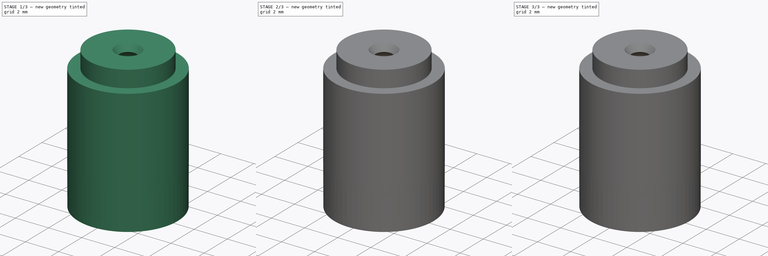
[diagram: build sequence overview — one tinted view per stage of 3, left to right]
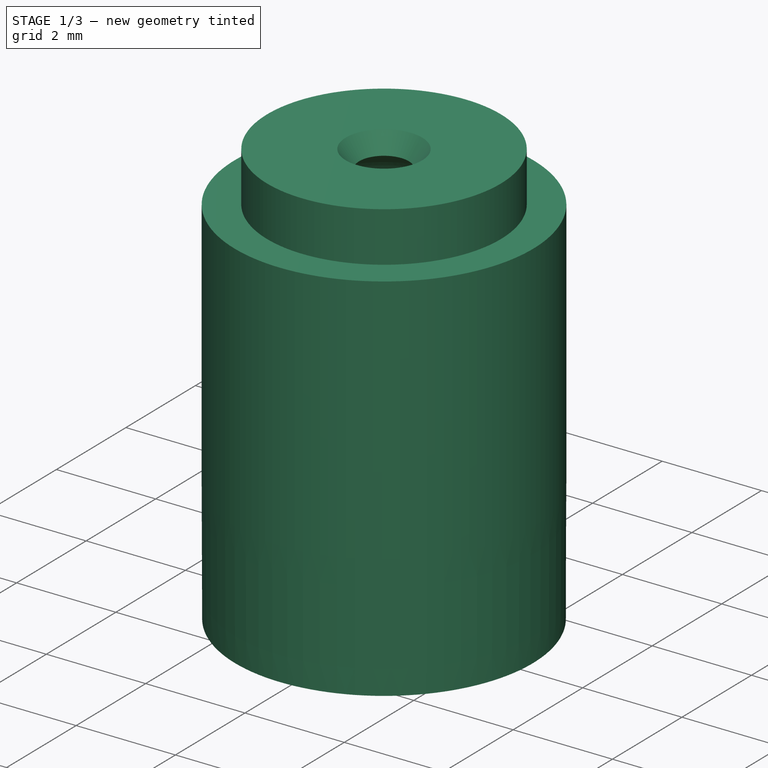
[diagram: stage 1 of 3 — iso view after this stage's code; geometry added in this stage tinted green]
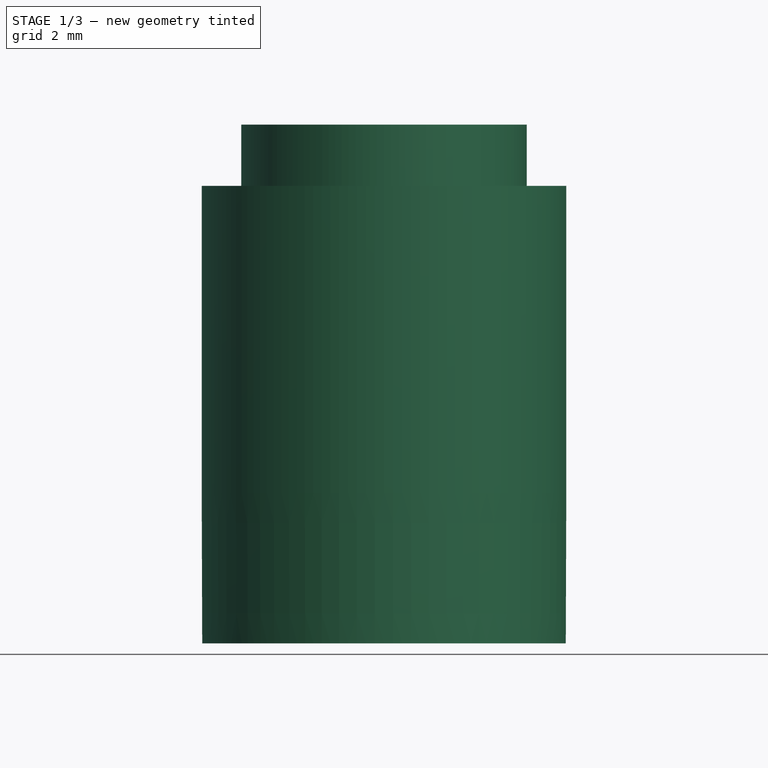
[diagram: stage 1 of 3 — front view after this stage's code; geometry added in this stage tinted green]
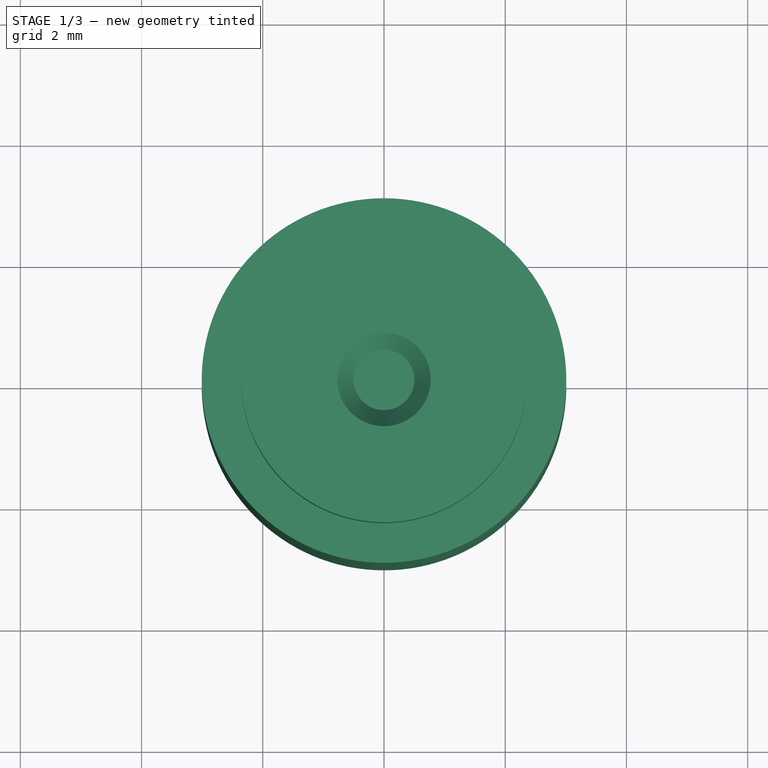
[diagram: stage 1 of 3 — top view after this stage's code; geometry added in this stage tinted green]
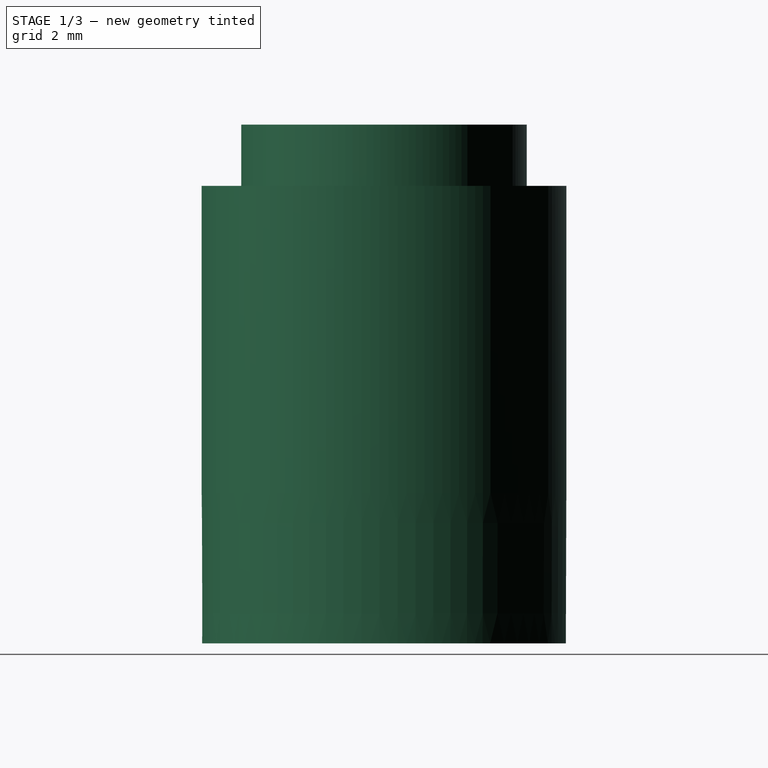
[diagram: stage 1 of 3 — right view after this stage's code; geometry added in this stage tinted green]
FCSTD DOCUMENT  (FreeCAD 2021.717R24301 +3627 (Git))
Label: spray_nozzle
License: All rights reserved
LicenseURL: http://en.wikipedia.org/wiki/All_rights_reserved
objects: Sketcher::SketchObject×4, PartDesign::PolarPattern×2, PartDesign::Revolution×1, PartDesign::SubtractiveHelix×1, PartDesign::AdditiveLoft×1, PartDesign::Body×1
note: 20 computed .brp shape members not serialized (recipe doc carries the construction recipe); baked Part::Feature solids carry a one-line shape summary decoded from their .brp

FEATURE [Sketcher::SketchObject] Sketch
  FullyConstrained = false
  MapMode = 5
  Placement = pos=(0,0,0) rot=(0.57735,0.57735,0.57735;2.0944rad)
  Support = -> [YZ_Plane]
  sketch-geometry (13):
    g0: LineSegment StartX=2.35493 StartY=-2.45628 StartZ=0 EndX=2.35493 EndY=-1.44574 EndZ=0
    g1: LineSegment StartX=2.35493 StartY=-1.44574 StartZ=0 EndX=0.770209 EndY=-1.44574 EndZ=0
    g2: LineSegment StartX=0.770209 StartY=-1.44574 StartZ=0 EndX=0.5 EndY=-1.8033 EndZ=0
    g3: ArcOfCircle CenterX=0 CenterY=-3.73979 CenterZ=0 NormalX=0 NormalY=0 NormalZ=1 AngleXU=0 Radius=2 StartAngle=0 EndAngle=1.31812
    g4: LineSegment StartX=2 StartY=-3.73979 StartZ=0 EndX=2 EndY=-3.9032 EndZ=0
    g5: LineSegment StartX=3 StartY=-10.004 StartZ=0 EndX=3.00824 EndY=-7.52075 EndZ=0
    g6: LineSegment StartX=3.00824 StartY=-7.52075 StartZ=0 EndX=3.00824 EndY=-2.45629 EndZ=0
    g7: LineSegment StartX=3.00824 StartY=-2.45628 StartZ=0 EndX=2.35493 EndY=-2.45628 EndZ=0
    g8: LineSegment StartX=2 StartY=-3.9032 StartZ=0 EndX=0 EndY=-3.9032 EndZ=0
    g9: LineSegment StartX=0 StartY=-3.9032 StartZ=0 EndX=0 EndY=-6.9032 EndZ=0
    g10: LineSegment StartX=0 StartY=-6.9032 StartZ=0 EndX=2 EndY=-6.9032 EndZ=0
    g11: LineSegment StartX=2 StartY=-6.9032 StartZ=0 EndX=2.27333 EndY=-10.004 EndZ=0
    g12: LineSegment StartX=2.27333 StartY=-10.004 StartZ=0 EndX=3 EndY=-10.004 EndZ=0
  constraints (30):
    c: Vertical(g0)
    c: Coincident(g0,g1)
    c: Horizontal(g1)
    c: Coincident(g1,g2)
    c: Coincident(g3,g2)
    c: Coincident(g5,g6)
    c: Coincident(g6,g7)
    c: Horizontal(g7)
    c: DistanceX(g-1,g2) = 0.5
    c: Vertical(g4)
    c: Coincident(g3,g4)
    c: Vertical(g3,g-1)
    c: Horizontal(g3,g3)
    c: Coincident(g4,g8)
    c: Horizontal(g8)
    c: Coincident(g8,g9)
    c: Coincident(g9,g10)
    c: Horizontal(g10)
    c: Coincident(g10,g11)
    c: Vertical(g9,g8)
    c: Vertical(g8,g-1)
    c: Coincident(g12,g11)
    c: Coincident(g12,g5)
    c: Horizontal(g12)
    c: Vertical(g4,g10)
    c: DistanceX(g-1,g5) = 3
    c: DistanceY(g9,g8) = 3
    c: Vertical(g6)
    c: DistanceX(g10,g10) = 2
    c: Coincident(g0,g7)
FEATURE [PartDesign::Revolution] Revolution
  Angle = 360
  Axis = (-2e-16,3e-16,1)
  Base = (0,0,0)
  ClaimChildren = false
  Fit = 0
  FitJoin = 0
  InnerFit = 0
  InnerFitJoin = 0
  NewSolid = false
  Placement = pos=(0,0,0) rot=(0.57735,0.57735,0.57735;2.0944rad)
  Profile = -> Sketch
  ReferenceAxis = -> Sketch [V_Axis]
  Reversed = true
  Suppress = false
  _ProfileBasedVersion = 0
FEATURE [Sketcher::SketchObject] Sketch001
  ExternalGeometry = -> [Revolution]
  FullyConstrained = true
  MapMode = 5
  Placement = pos=(3e-15,-1.9e-15,-6.9032) rot=(0.707107,0.707107,0;3.14159rad)
  Support = -> [Revolution]
  sketch-geometry (4):
    g0: ArcOfCircle CenterX=0 CenterY=6e-16 CenterZ=0 NormalX=0 NormalY=0 NormalZ=1 AngleXU=0 Radius=1 StartAngle=1.39626 EndAngle=3.14159
    g1: ArcOfCircle CenterX=0 CenterY=6e-16 CenterZ=0 NormalX=0 NormalY=0 NormalZ=1 AngleXU=0 Radius=2 StartAngle=1.39626 EndAngle=3.14159
    g2: LineSegment StartX=-1 StartY=6e-16 StartZ=0 EndX=-2 EndY=6e-16 EndZ=0
    g3: LineSegment StartX=0.347296 StartY=1.96962 StartZ=0 EndX=0.173648 EndY=0.984808 EndZ=0
  constraints (12):
    c: Coincident(g0,g-1)
    c: Angle(g0) = 1.74533
    c: Coincident(g1,g0)
    c: PointOnObject(g1,g-3)
    c: Angle(g1) = 1.74533
    c: Horizontal(g1,g0)
    c: Horizontal(g0,g0)
    c: Coincident(g2,g0)
    c: Coincident(g2,g1)
    c: Coincident(g3,g1)
    c: Coincident(g3,g0)
    c: DistanceX(g0,g0) = 1
FEATURE [PartDesign::SubtractiveHelix] SubtractiveHelix
  Angle = 0
  Axis = (-3e-16,3e-16,1)
  Base = (0,0,0)
  BaseFeature = -> Revolution
  ClaimChildren = false
  Fit = 0
  FitJoin = 0
  HasBeenEdited = true
  Height = 3.1
  InnerFit = 0
  InnerFitJoin = 0
  LeftHanded = false
  Mode = 0
  NewSolid = false
  Outside = false
  Pitch = 7
  Placement = pos=(0,0,0) rot=(0.57735,0.57735,0.57735;2.0944rad)
  Profile = -> Sketch001
  ReferenceAxis = -> Z_Axis
  Suppress = false
  Turns = 1.6
  _ProfileBasedVersion = 0
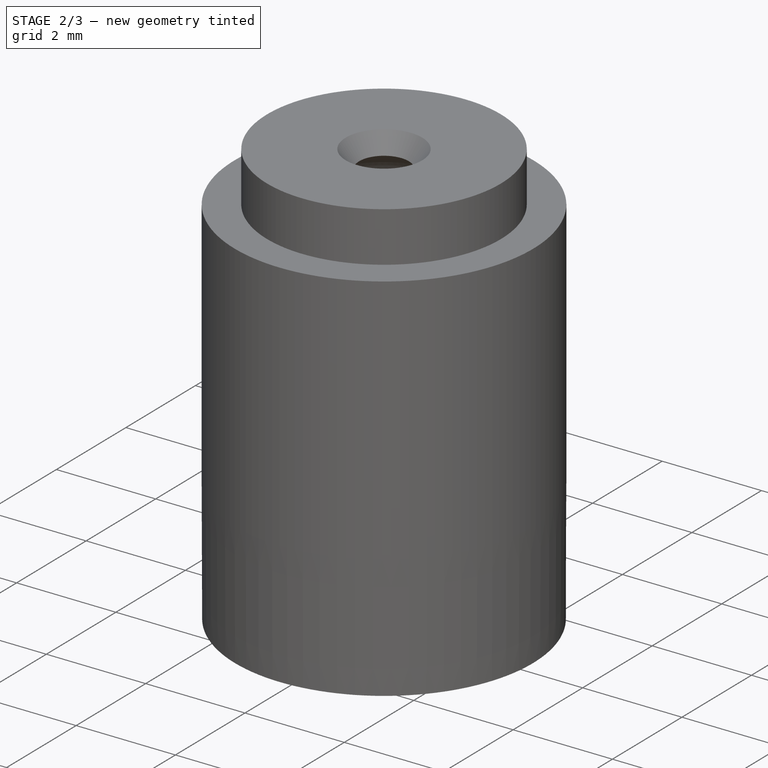
[diagram: stage 2 of 3 — iso view after this stage's code; geometry added in this stage tinted green]
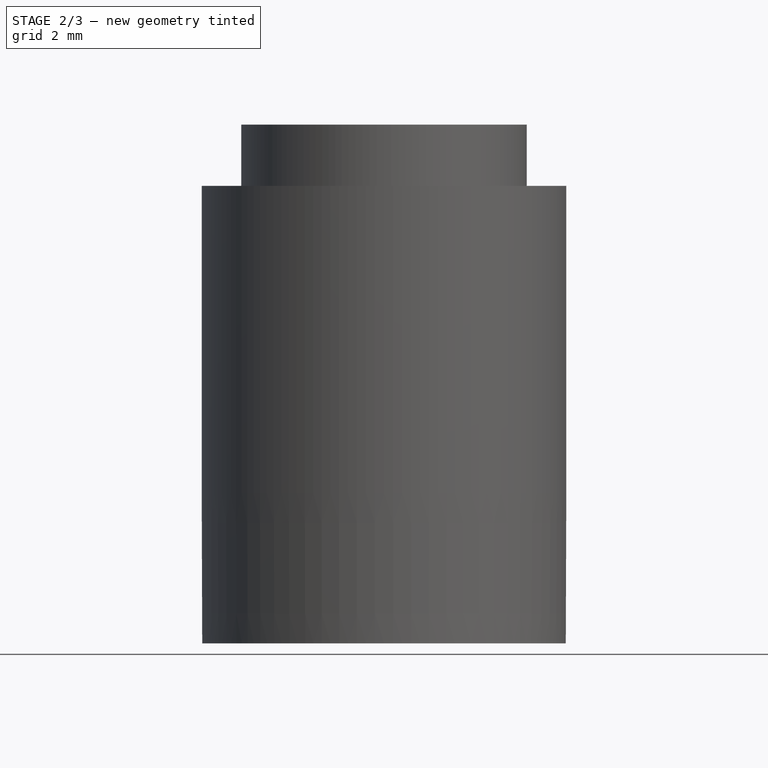
[diagram: stage 2 of 3 — front view after this stage's code; geometry added in this stage tinted green]
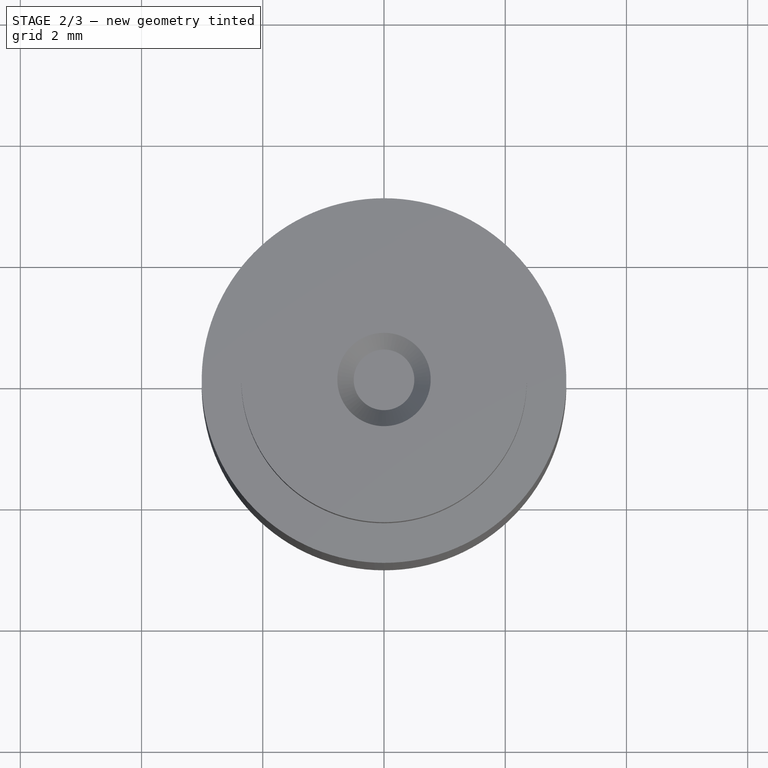
[diagram: stage 2 of 3 — top view after this stage's code; geometry added in this stage tinted green]
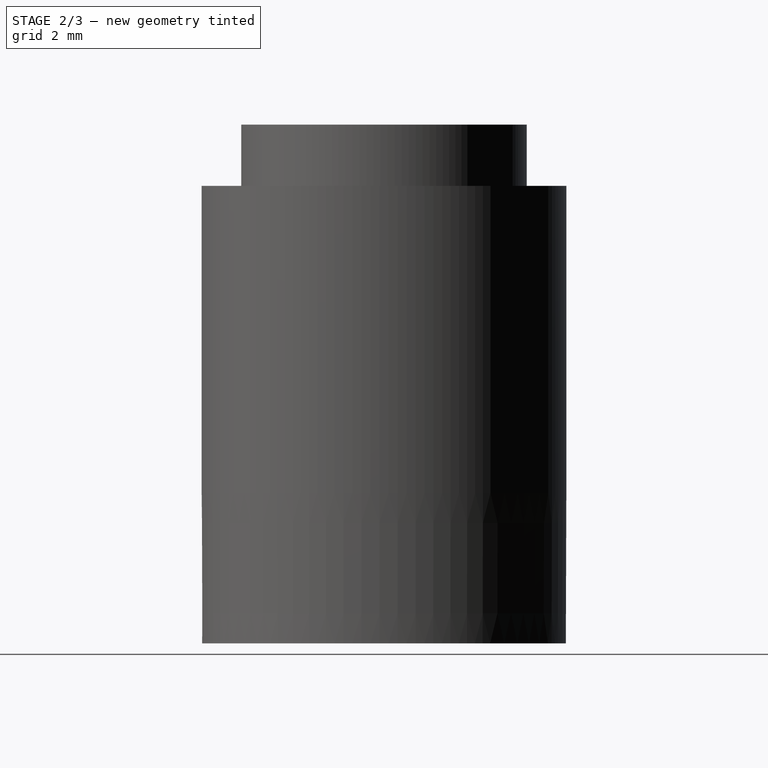
[diagram: stage 2 of 3 — right view after this stage's code; geometry added in this stage tinted green]
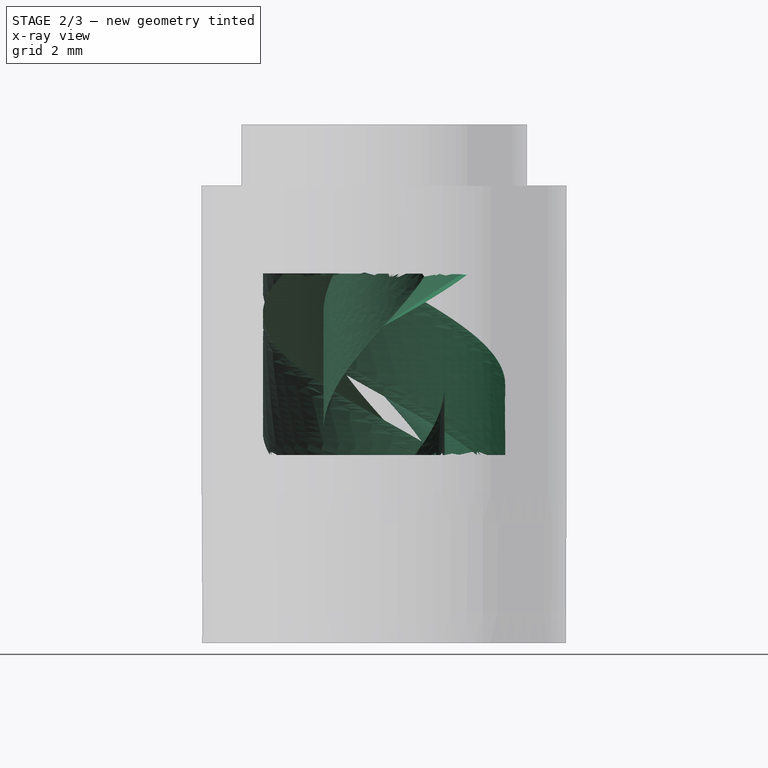
[diagram: stage 2 of 3 — x-ray composite at the right view; earlier geometry ghosted, this stage's added geometry solid]
FEATURE [PartDesign::PolarPattern] PolarPattern
  Angle = 360
  Axis = -> Sketch001 [N_Axis]
  BaseFeature = -> SubtractiveHelix
  CopyShape = true
  NewSolid = false
  Occurrences = 3
  OriginalSubs = -> [SubtractiveHelix]
  Originals = -> [SubtractiveHelix]
  ParallelTransform = true
  Placement = pos=(0,0,0) rot=(0.57735,0.57735,0.57735;2.0944rad)
  SubTransform = true
  Suppress = false
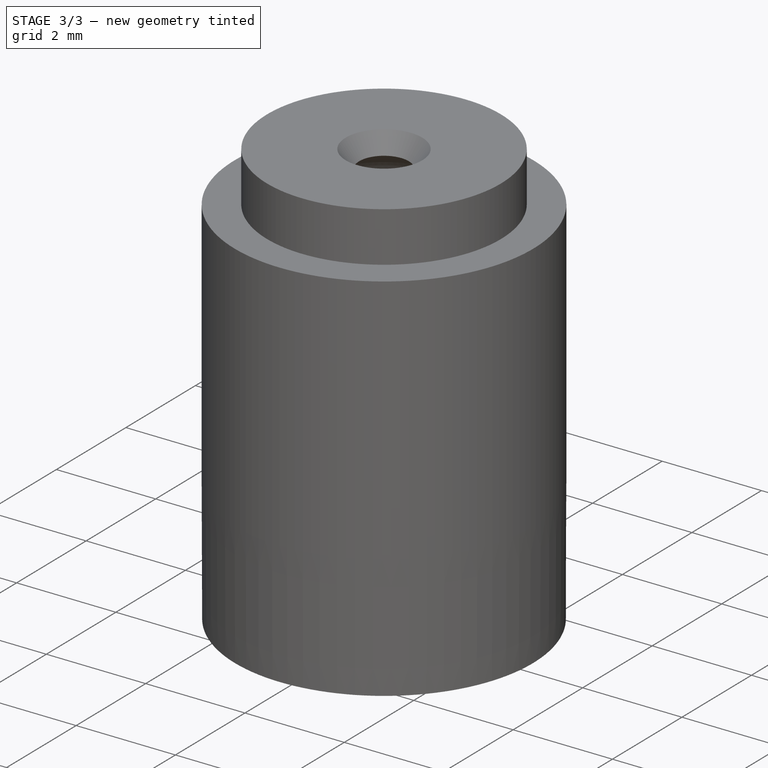
[diagram: stage 3 of 3 — iso view after this stage's code; geometry added in this stage tinted green]
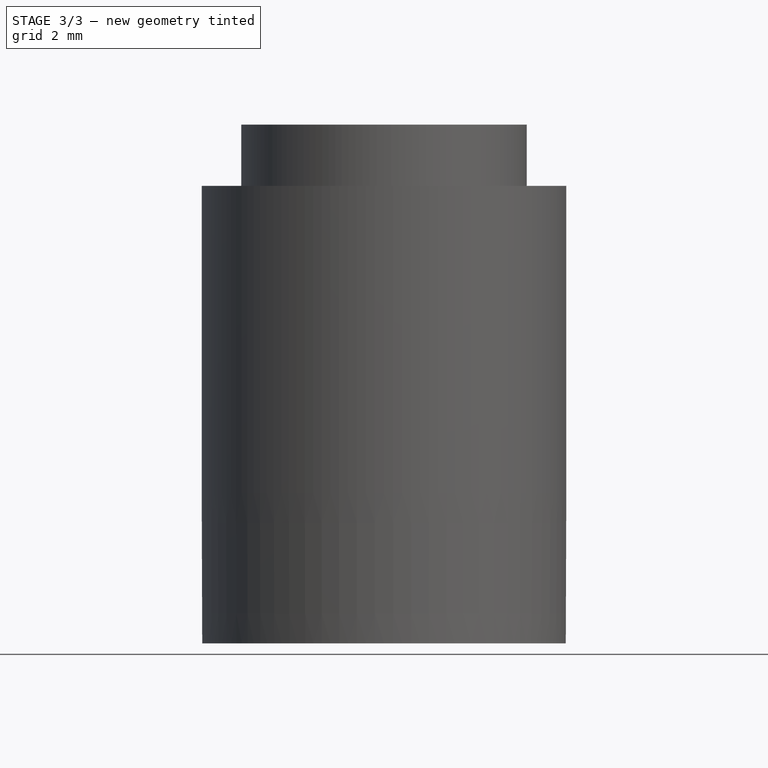
[diagram: stage 3 of 3 — front view after this stage's code; geometry added in this stage tinted green]
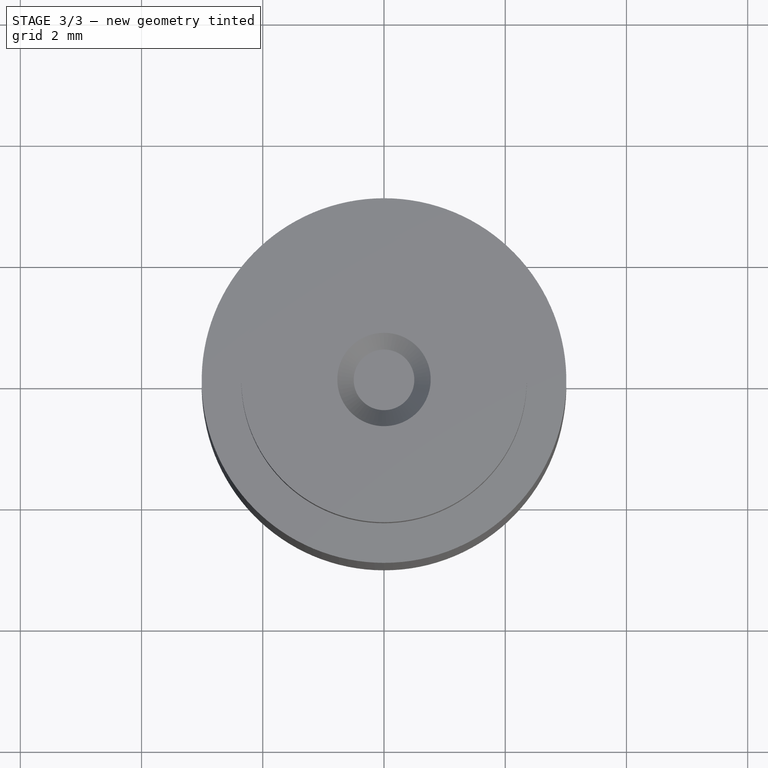
[diagram: stage 3 of 3 — top view after this stage's code; geometry added in this stage tinted green]
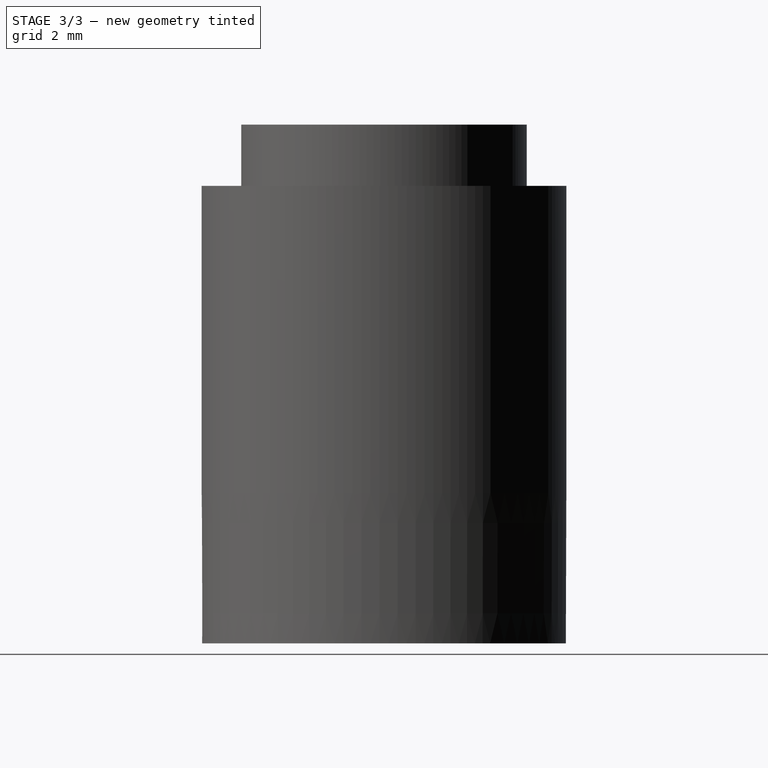
[diagram: stage 3 of 3 — right view after this stage's code; geometry added in this stage tinted green]
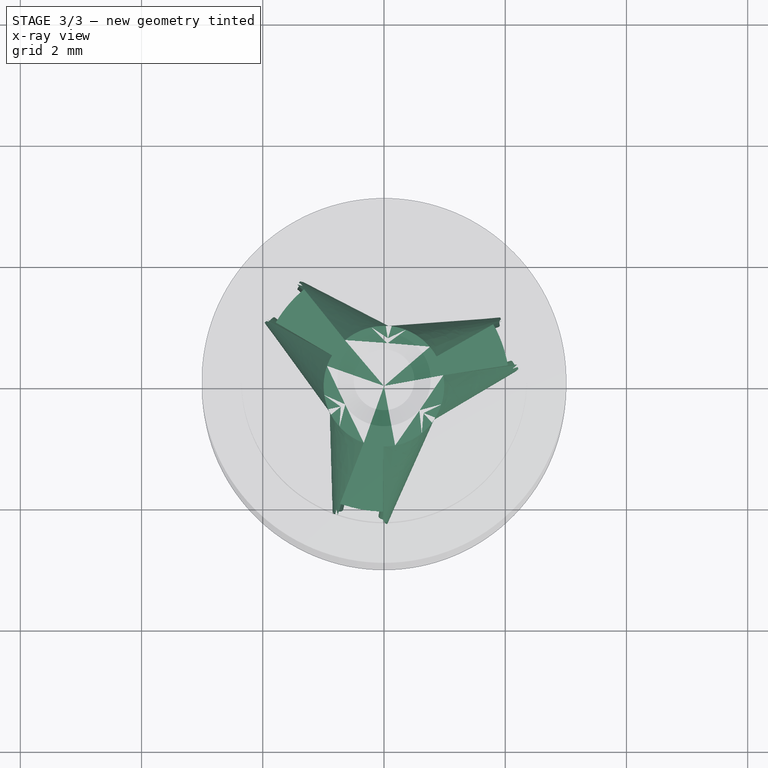
[diagram: stage 3 of 3 — x-ray composite at the top view; earlier geometry ghosted, this stage's added geometry solid]
FEATURE [Sketcher::SketchObject] Sketch003
  FullyConstrained = false
  MapMode = 5
  Placement = pos=(9e-15,-5e-15,-7.71948) rot=(0.707107,0.707107,0;3.14159rad)
  sketch-geometry (7):
    g0: ArcOfCircle CenterX=0 CenterY=0 CenterZ=0 NormalX=0 NormalY=0 NormalZ=1 AngleXU=0 Radius=0.996059 StartAngle=0.0787771 EndAngle=1.05735
    g1: ArcOfCircle CenterX=0 CenterY=0 CenterZ=0 NormalX=0 NormalY=0 NormalZ=1 AngleXU=0 Radius=2.13478 StartAngle=1.05503 EndAngle=1.40513
    g2: LineSegment StartX=0.99297 StartY=0.0783855 StartZ=0 EndX=0 EndY=0 EndZ=0
    g3: LineSegment StartX=1.05288 StartY=1.85707 StartZ=0 EndX=0.489245 EndY=0.867625 EndZ=0
    g4: ArcOfCircle CenterX=0 CenterY=0 CenterZ=0 NormalX=0 NormalY=0 NormalZ=1 AngleXU=0 Radius=0.993578 StartAngle=1.39029 EndAngle=2.17317
    g5: LineSegment StartX=0 StartY=0 StartZ=0 EndX=-0.562963 EndY=0.8187 EndZ=0
    g6: LineSegment StartX=0.178376 StartY=0.977435 StartZ=0 EndX=0.352041 EndY=2.10555 EndZ=0
  constraints (12):
    c: Coincident(g0,g-1)
    c: Coincident(g1,g0)
    c: Coincident(g2,g0)
    c: Coincident(g2,g0)
    c: Coincident(g3,g1)
    c: Coincident(g3,g0)
    c: Coincident(g4,g0)
    c: Coincident(g5,g0)
    c: Coincident(g5,g4)
    c: Coincident(g6,g4)
    c: Coincident(g6,g1)
    c: Angle(g2,g5) = 2.0944
FEATURE [Sketcher::SketchObject] Sketch004
  FullyConstrained = false
  MapMode = 5
  Placement = pos=(4.4e-15,-2.8e-15,-10.004) rot=(0.707107,0.707107,0;3.14159rad)
  Support = -> [PolarPattern]
  sketch-geometry (4):
    g0: ArcOfCircle CenterX=0 CenterY=0 CenterZ=0 NormalX=0 NormalY=0 NormalZ=1 AngleXU=0 Radius=2.28217 StartAngle=1.05552 EndAngle=1.39659
    g1: ArcOfCircle CenterX=0 CenterY=0 CenterZ=0 NormalX=0 NormalY=0 NormalZ=1 AngleXU=0 Radius=2.99746 StartAngle=1.0509 EndAngle=1.39875
    g2: LineSegment StartX=0.395558 StartY=2.24762 StartZ=0 EndX=0.513156 EndY=2.95321 EndZ=0
    g3: LineSegment StartX=1.12459 StartY=1.98584 StartZ=0 EndX=1.4891 EndY=2.60142 EndZ=0
  constraints (6):
    c: Coincident(g0,g-1)
    c: Coincident(g1,g0)
    c: Coincident(g2,g0)
    c: Coincident(g2,g1)
    c: Coincident(g3,g0)
    c: Coincident(g3,g1)
FEATURE [PartDesign::AdditiveLoft] AdditiveLoft
  BaseFeature = -> PolarPattern
  ClaimChildren = false
  Closed = false
  Fit = 0
  FitJoin = 0
  InnerFit = 0
  InnerFitJoin = 0
  NewSolid = false
  Placement = pos=(0,0,0) rot=(0.57735,0.57735,0.57735;2.0944rad)
  Profile = -> Sketch004
  Ruled = false
  Sections = -> [Sketch003]
  Suppress = false
  _ProfileBasedVersion = 0
FEATURE [PartDesign::PolarPattern] PolarPattern001
  Angle = 360
  Axis = -> Sketch004 [N_Axis]
  BaseFeature = -> AdditiveLoft
  CopyShape = true
  NewSolid = false
  Occurrences = 3
  OriginalSubs = -> [AdditiveLoft]
  Originals = -> [AdditiveLoft]
  ParallelTransform = true
  Placement = pos=(0,0,0) rot=(0.57735,0.57735,0.57735;2.0944rad)
  SubTransform = true
  Suppress = false
FEATURE [PartDesign::Body] Body  label="SprayNozzle"
  AutoGroupSolids = false
  ExportMode = 0
  Group = -> [Sketch,Revolution,Sketch001,SubtractiveHelix,PolarPattern,Sketch003,Sketch004,AdditiveLoft,PolarPattern001]
  Origin = -> Origin
  Tip = -> PolarPattern001
  _ExportChildren = -> [Revolution,SubtractiveHelix,PolarPattern,AdditiveLoft,PolarPattern001]
  _GroupVersion = 1
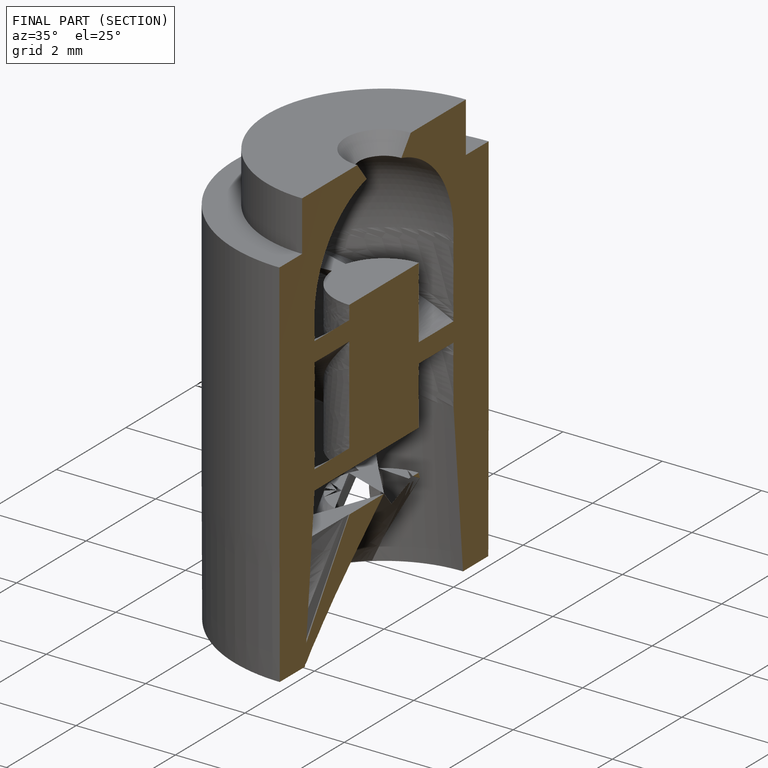
[diagram: finished part — half-section view (interior)]
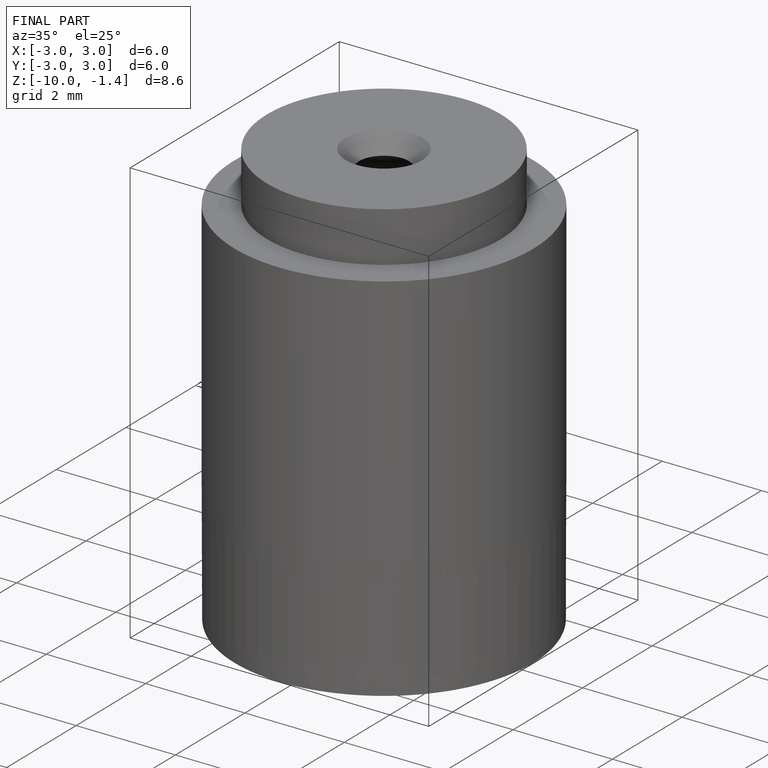
[diagram: finished part — iso view with bounding-box wireframe]
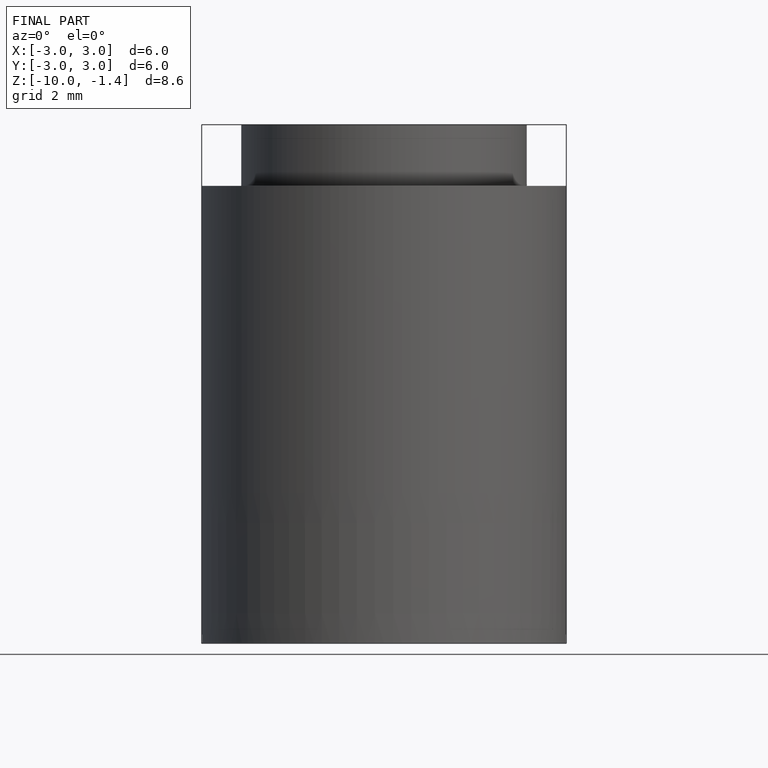
[diagram: finished part — front view with bounding-box wireframe]
